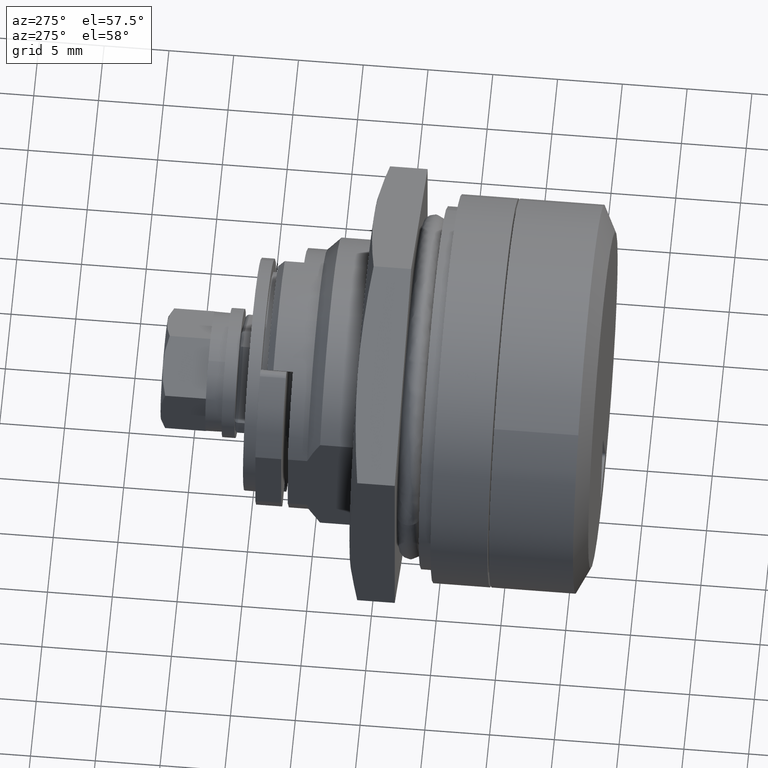
[diagram: clean part render]
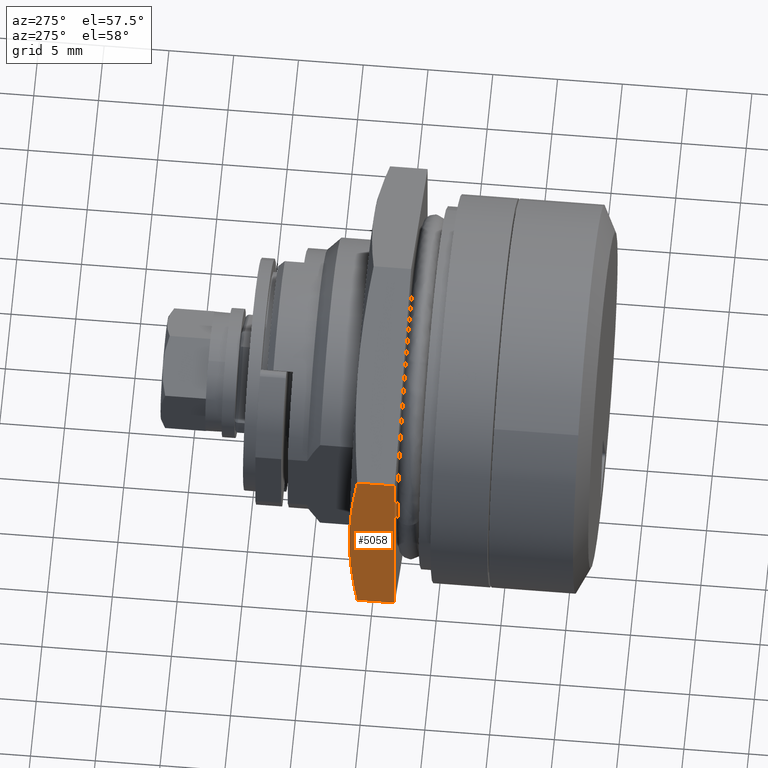
[diagram: same view with one face highlighted and labeled with its STEP entity id]
A machine part, auxiliary view. The second image highlights one B-rep face of the part: STEP entity #5058.
In plain terms, the highlighted face is a freeform B-spline surface patch.
Its self-contained STEP definition (entity closure, byte-faithful):
#4970=CARTESIAN_POINT('',(57.698422999999892,14.500000000000000,-8.371578000000101));
#4971=VERTEX_POINT('',#4970);
#4977=CARTESIAN_POINT('',(60.597371000000003,14.500001117390161,-8.371577354874528));
#4978=VERTEX_POINT('',#4977);
#4979=CARTESIAN_POINT('',(57.698422999999892,14.500000000000000,-8.371578000000101));
#4980=CARTESIAN_POINT('',(60.597371000000003,14.500001117390161,-8.371577354874528));
#4981=QUASI_UNIFORM_CURVE('',1,(#4979,#4980),.UNSPECIFIED.,.F.,.U.);
#4982=EDGE_CURVE('',#4971,#4978,#4981,.T.);
#5008=CARTESIAN_POINT('',(57.523596471891011,14.500000000000000,9.207901916771311));
#5009=CARTESIAN_POINT('',(57.523596471891011,14.500000000000000,-9.207899216162424));
#5010=CARTESIAN_POINT('',(61.373246586619658,14.500000000000000,9.207901916771311));
#5011=CARTESIAN_POINT('',(61.373246586619658,14.500000000000000,-9.207899216162424));
#5012=B_SPLINE_SURFACE_WITH_KNOTS('',1,1,((#5008,#5010),(#5009,#5011)),.UNSPECIFIED.,.F.,.F.,.U.,(2,2),(2,2),(0.0,18.415801132933741),(0.0,3.849650114728647),.UNSPECIFIED.);
#5013=ORIENTED_EDGE('',*,*,#4982,.F.);
#5014=CARTESIAN_POINT('',(57.698422999999892,14.500000000000000,8.371580999999999));
#5015=VERTEX_POINT('',#5014);
#5016=CARTESIAN_POINT('',(57.698422999999892,14.500000000000000,8.371580999999999));
#5017=CARTESIAN_POINT('',(57.698422999999892,14.500000000000000,-8.371578000000101));
#5018=QUASI_UNIFORM_CURVE('',1,(#5016,#5017),.UNSPECIFIED.,.F.,.U.);
#5019=EDGE_CURVE('',#5015,#4971,#5018,.T.);
#5020=ORIENTED_EDGE('',*,*,#5019,.F.);
#5021=CARTESIAN_POINT('',(60.597371000000102,14.500000000000000,8.371580999999999));
#5022=VERTEX_POINT('',#5021);
#5023=CARTESIAN_POINT('',(57.698422999999892,14.500000000000000,8.371580999999999));
#5024=CARTESIAN_POINT('',(60.597371000000102,14.500000000000000,8.371580999999999));
#5025=QUASI_UNIFORM_CURVE('',1,(#5023,#5024),.UNSPECIFIED.,.F.,.U.);
#5026=EDGE_CURVE('',#5015,#5022,#5025,.T.);
#5027=ORIENTED_EDGE('',*,*,#5026,.T.);
#5028=CARTESIAN_POINT('',(61.198423000000012,14.500000000000000,0.0));
#5029=VERTEX_POINT('',#5028);
#5030=CARTESIAN_POINT('',(61.198423000000012,14.500000000000000,0.0));
#5031=CARTESIAN_POINT('',(61.198422996642890,14.500000000000000,0.004878369788674));
#5032=CARTESIAN_POINT('',(61.198422340332662,14.500000000000000,0.009756720063881));
#5033=CARTESIAN_POINT('',(61.198232282907533,14.500000000000000,0.712516095093130));
#5034=CARTESIAN_POINT('',(61.184475874019547,14.500000000000000,1.409997744594541));
#5035=CARTESIAN_POINT('',(61.130753798725053,14.500000000000000,2.804189515415332));
#5036=CARTESIAN_POINT('',(61.090803947848720,14.500000000000000,3.500900102300255));
#5037=CARTESIAN_POINT('',(60.935160097901310,14.500000000000000,5.589978177663958));
#5038=CARTESIAN_POINT('',(60.783634247797643,14.500000000000000,6.981290875374002));
#5039=CARTESIAN_POINT('',(60.597371000000102,14.500000000000000,8.371580999999999));
#5040=B_SPLINE_CURVE_WITH_KNOTS('',3,(#5030,#5031,#5032,#5033,#5034,#5035,#5036,#5037,#5038,#5039),.UNSPECIFIED.,.F.,.U.,(4,2,2,2,4),(0.499126224519540,0.500000000000000,0.625000000000000,0.750000000000000,1.0),.UNSPECIFIED.);
#5041=EDGE_CURVE('',#5029,#5022,#5040,.T.);
#5042=ORIENTED_EDGE('',*,*,#5041,.F.);
#5043=CARTESIAN_POINT('',(60.597371000000003,14.500001117390161,-8.371577354874528));
#5044=CARTESIAN_POINT('',(60.690708933820687,14.500001023987760,-7.674893172271421));
#5045=CARTESIAN_POINT('',(60.775523146850567,14.500000930462759,-6.976673716438485));
#5046=CARTESIAN_POINT('',(60.924558286666617,14.500000743116530,-5.576525588825684));
#5047=CARTESIAN_POINT('',(60.988523127056880,14.500000649583651,-4.876749934362493));
#5048=CARTESIAN_POINT('',(61.092284174596628,14.500000462844410,-3.477922304105184));
#5049=CARTESIAN_POINT('',(61.132059763811661,14.500000369637510,-2.778864824822383));
#5050=CARTESIAN_POINT('',(61.185043910841351,14.500000184228661,-1.386410295861338));
#5051=CARTESIAN_POINT('',(61.198422044566733,14.500000092024420,-0.693008254336562));
#5052=CARTESIAN_POINT('',(61.198423000000012,14.500000000000000,0.0));
#5053=B_SPLINE_CURVE_WITH_KNOTS('',3,(#5043,#5044,#5045,#5046,#5047,#5048,#5049,#5050,#5051,#5052),.UNSPECIFIED.,.F.,.U.,(4,2,2,2,4),(0.0,0.125000000000000,0.250000000000000,0.375000000000000,0.499126224519539),.UNSPECIFIED.);
#5054=EDGE_CURVE('',#4978,#5029,#5053,.T.);
#5055=ORIENTED_EDGE('',*,*,#5054,.F.);
#5056=EDGE_LOOP('',(#5013,#5020,#5027,#5042,#5055));
#5057=FACE_OUTER_BOUND('',#5056,.T.);
#5058=ADVANCED_FACE('',(#5057),#5012,.F.);